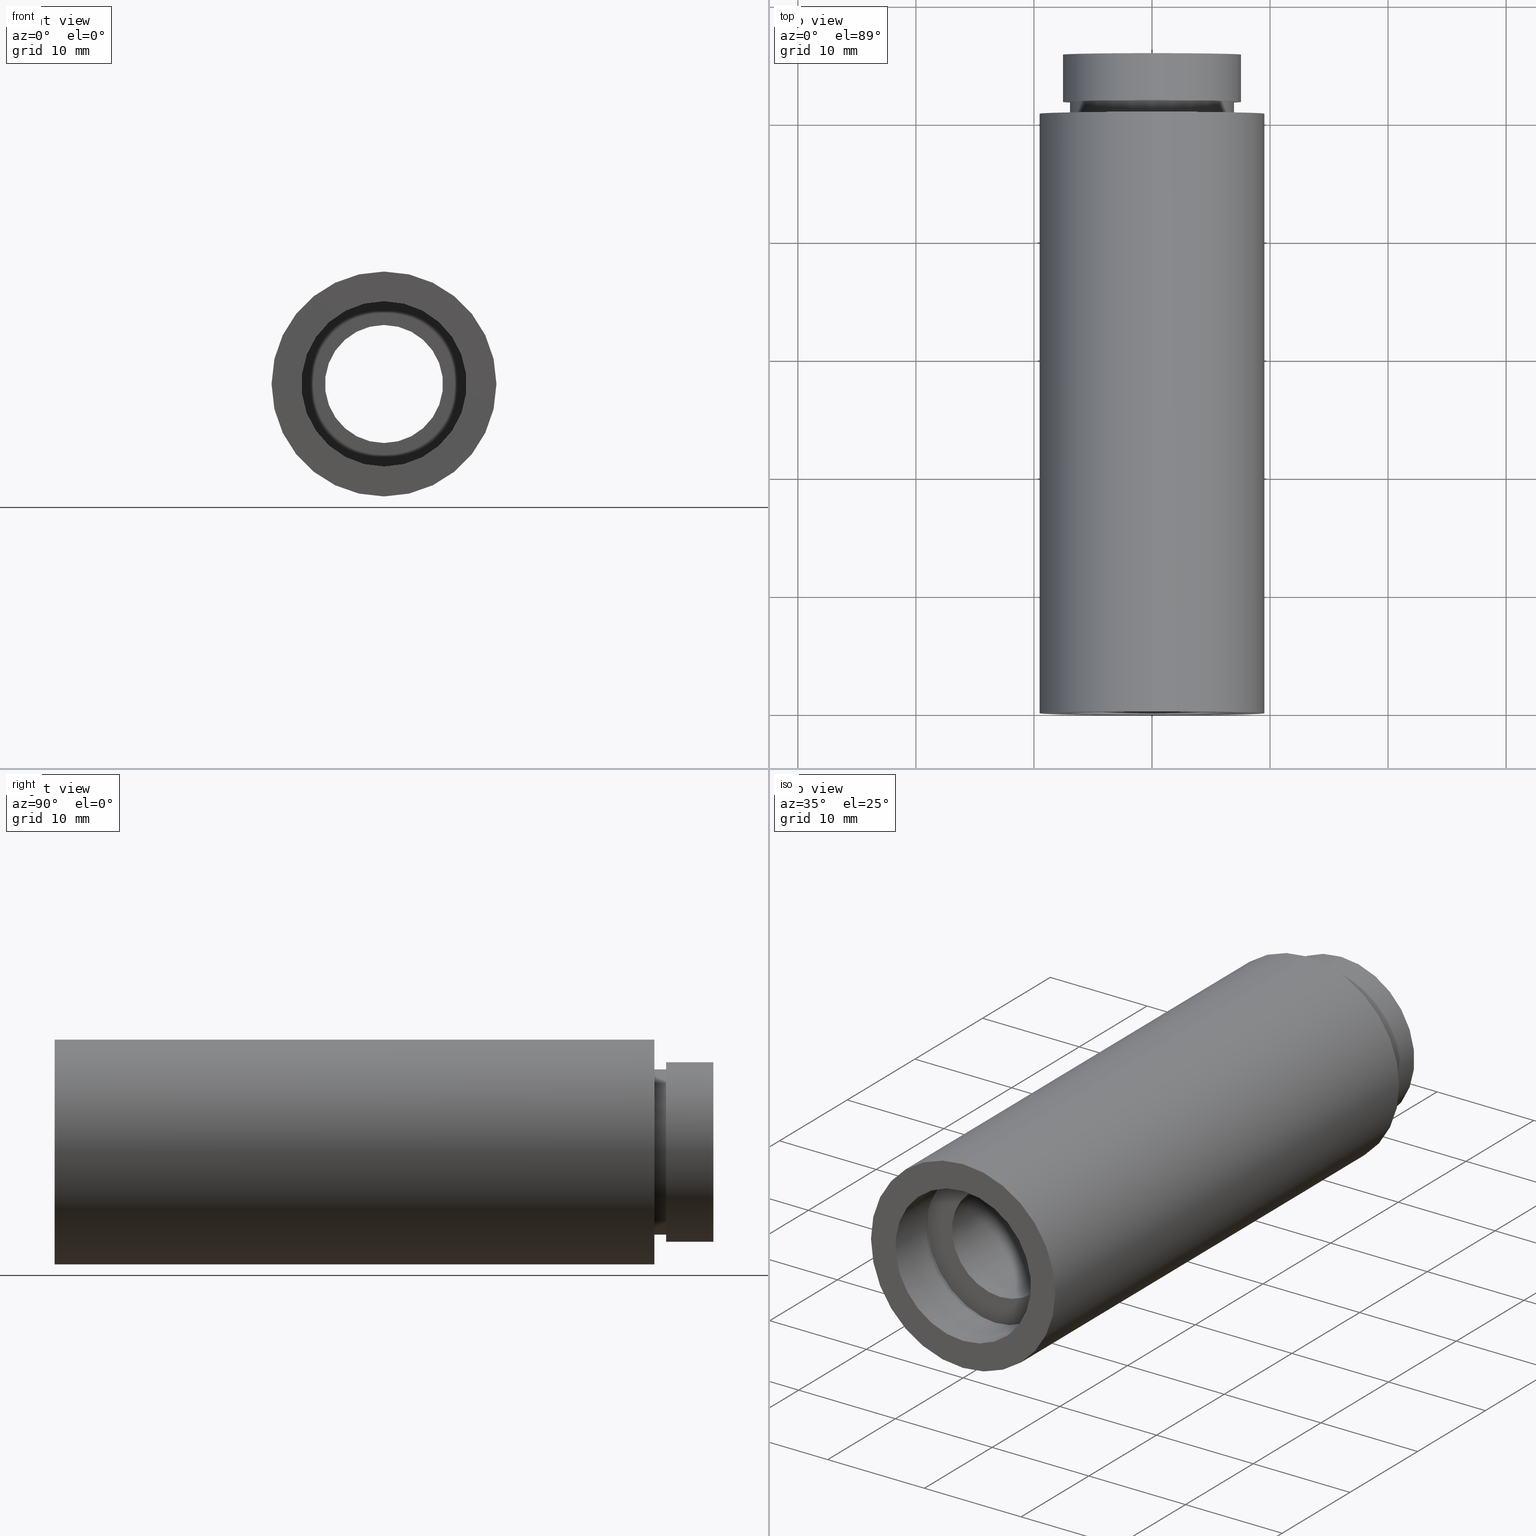
[diagram: canonical four-view strip — front | top / right | iso, engineering-drawing reading convention]
A machine part, canonical four-view strip (front | top / right | iso — engineering-drawing reading convention). The complete STEP part file that produces these views, byte-faithful:
ISO-10303-21;
HEADER;
FILE_DESCRIPTION (( 'STEP AP214' ),
    '1' );
FILE_NAME ('503089.STEP',
    '2019-09-11T06:12:07',
    ( '' ),
    ( '' ),
    'SwSTEP 2.0',
    'SolidWorks 2016',
    '' );
FILE_SCHEMA (( 'AUTOMOTIVE_DESIGN' ));
ENDSEC;

DATA;
#1 = DIRECTION ( 'NONE',  ( -0.0000000000000000000, 1.000000000000000000, -0.0000000000000000000 ) ) ;
#2 = EDGE_LOOP ( 'NONE', ( #42, #206, #378, #75 ) ) ;
#3 =( GEOMETRIC_REPRESENTATION_CONTEXT ( 3 ) GLOBAL_UNCERTAINTY_ASSIGNED_CONTEXT ( ( #586 ) ) GLOBAL_UNIT_ASSIGNED_CONTEXT ( ( #127, #316, #174 ) ) REPRESENTATION_CONTEXT ( 'NONE', 'WORKASPACE' ) );
#4 = ORIENTED_EDGE ( 'NONE', *, *, #388, .F. ) ;
#5 = DIRECTION ( 'NONE',  ( -0.0000000000000000000, 1.000000000000000000, -0.0000000000000000000 ) ) ;
#6 = DIRECTION ( 'NONE',  ( -0.0000000000000000000, 1.000000000000000000, -0.0000000000000000000 ) ) ;
#7 = DIRECTION ( 'NONE',  ( 0.0000000000000000000, 0.0000000000000000000, 1.000000000000000000 ) ) ;
#8 = LINE ( 'NONE', #203, #539 ) ;
#9 = CARTESIAN_POINT ( 'NONE',  ( 7.000000000000020400, 4.499999999999983100, 0.0000000000000000000 ) ) ;
#10 = CARTESIAN_POINT ( 'NONE',  ( 7.000000000000010700, 51.79999999999998300, 0.0000000000000000000 ) ) ;
#11 = DIRECTION ( 'NONE',  ( 0.0000000000000000000, -0.0000000000000000000, -1.000000000000000000 ) ) ;
#12 = STYLED_ITEM ( 'NONE', ( #382 ), #459 ) ;
#13 = DIRECTION ( 'NONE',  ( 0.0000000000000000000, 0.0000000000000000000, 1.000000000000000000 ) ) ;
#14 = DIRECTION ( 'NONE',  ( 0.0000000000000000000, 0.0000000000000000000, 1.000000000000000000 ) ) ;
#15 = EDGE_LOOP ( 'NONE', ( #341, #311, #371, #106 ) ) ;
#16 = VERTEX_POINT ( 'NONE', #70 ) ;
#17 = CARTESIAN_POINT ( 'NONE',  ( 0.0000000000000000000, 50.79999999999998300, 7.000000000000010700 ) ) ;
#18 = PRESENTATION_LAYER_ASSIGNMENT (  '', '', ( #596 ) ) ;
#19 = CARTESIAN_POINT ( 'NONE',  ( 7.600000000000010300, 55.79999999999997600, 0.0000000000000000000 ) ) ;
#20 = VECTOR ( 'NONE', #279, 1000.000000000000000 ) ;
#21 = FACE_OUTER_BOUND ( 'NONE', #115, .T. ) ;
#22 = DIRECTION ( 'NONE',  ( -0.0000000000000000000, 1.000000000000000000, -0.0000000000000000000 ) ) ;
#23 = AXIS2_PLACEMENT_3D ( 'NONE', #230, #274, #620 ) ;
#24 = CARTESIAN_POINT ( 'NONE',  ( 8.572527594031495900E-016, -2.775557561562891400E-014, -7.000000000000019500 ) ) ;
#25 = ORIENTED_EDGE ( 'NONE', *, *, #523, .T. ) ;
#26 = PRODUCT_DEFINITION_FORMATION_WITH_SPECIFIED_SOURCE ( '�κ�', '', #146, .NOT_KNOWN. ) ;
#27 = DIRECTION ( 'NONE',  ( -0.0000000000000000000, 1.000000000000000000, -0.0000000000000000000 ) ) ;
#28 = CARTESIAN_POINT ( 'NONE',  ( 0.0000000000000000000, 161.3761669434274500, 7.600000000000010300 ) ) ;
#29 =( NAMED_UNIT ( * ) SI_UNIT ( $, .STERADIAN. ) SOLID_ANGLE_UNIT ( ) );
#30 = ORIENTED_EDGE ( 'NONE', *, *, #58, .T. ) ;
#31 = CARTESIAN_POINT ( 'NONE',  ( 0.0000000000000000000, 161.3761669434274500, 0.0000000000000000000 ) ) ;
#32 = EDGE_CURVE ( 'NONE', #519, #318, #593, .T. ) ;
#33 = ORIENTED_EDGE ( 'NONE', *, *, #58, .F. ) ;
#34 = FACE_OUTER_BOUND ( 'NONE', #350, .T. ) ;
#35 = STYLED_ITEM ( 'NONE', ( #485 ), #294 ) ;
#36 = EDGE_LOOP ( 'NONE', ( #48, #394, #427, #589 ) ) ;
#37 = UNCERTAINTY_MEASURE_WITH_UNIT (LENGTH_MEASURE( 1.000000000000000100E-005 ), #517, 'distance_accuracy_value', 'NONE');
#38 = DIRECTION ( 'NONE',  ( -0.0000000000000000000, 1.000000000000000000, -0.0000000000000000000 ) ) ;
#39 = FACE_OUTER_BOUND ( 'NONE', #520, .T. ) ;
#40 = AXIS2_PLACEMENT_3D ( 'NONE', #31, #486, #121 ) ;
#41 = VERTEX_POINT ( 'NONE', #301 ) ;
#42 = ORIENTED_EDGE ( 'NONE', *, *, #557, .T. ) ;
#43 = FACE_OUTER_BOUND ( 'NONE', #537, .T. ) ;
#44 = SURFACE_STYLE_FILL_AREA ( #333 ) ;
#45 = CARTESIAN_POINT ( 'NONE',  ( 0.0000000000000000000, 51.79999999999998300, 0.0000000000000000000 ) ) ;
#46 = EDGE_CURVE ( 'NONE', #130, #438, #325, .T. ) ;
#47 = CARTESIAN_POINT ( 'NONE',  ( 9.307315673519907200E-016, 4.499999999999976000, -7.600000000000019200 ) ) ;
#48 = ORIENTED_EDGE ( 'NONE', *, *, #547, .T. ) ;
#49 = DIRECTION ( 'NONE',  ( -0.0000000000000000000, 1.000000000000000000, -0.0000000000000000000 ) ) ;
#50 = CARTESIAN_POINT ( 'NONE',  ( 0.0000000000000000000, 55.79999999999997600, 0.0000000000000000000 ) ) ;
#51 = DIRECTION ( 'NONE',  ( 0.0000000000000000000, 0.0000000000000000000, 1.000000000000000000 ) ) ;
#52 = CIRCLE ( 'NONE', #545, 7.000000000000019500 ) ;
#53 = CARTESIAN_POINT ( 'NONE',  ( 0.0000000000000000000, 55.79999999999997600, 0.0000000000000000000 ) ) ;
#54 = DIRECTION ( 'NONE',  ( 0.0000000000000000000, 0.0000000000000000000, 1.000000000000000000 ) ) ;
#55 = ORIENTED_EDGE ( 'NONE', *, *, #449, .F. ) ;
#56 = AXIS2_PLACEMENT_3D ( 'NONE', #366, #22, #60 ) ;
#57 = CLOSED_SHELL ( 'NONE', ( #540, #342, #294, #348, #526, #204, #248, #481, #114, #61, #165, #345, #299, #478, #471, #65, #347, #253 ) ) ;
#58 = EDGE_CURVE ( 'NONE', #349, #542, #600, .T. ) ;
#59 = DIRECTION ( 'NONE',  ( -0.0000000000000000000, 1.000000000000000000, -0.0000000000000000000 ) ) ;
#60 = DIRECTION ( 'NONE',  ( 0.0000000000000000000, 0.0000000000000000000, 1.000000000000000000 ) ) ;
#61 = ADVANCED_FACE ( 'NONE', ( #262 ), #531, .T. ) ;
#62 = DIRECTION ( 'NONE',  ( 0.0000000000000000000, -0.0000000000000000000, -1.000000000000000000 ) ) ;
#63 = STYLED_ITEM ( 'NONE', ( #190 ), #348 ) ;
#64 = VERTEX_POINT ( 'NONE', #548 ) ;
#65 = ADVANCED_FACE ( 'NONE', ( #492 ), #99, .F. ) ;
#66 = DIRECTION ( 'NONE',  ( 0.0000000000000000000, 0.0000000000000000000, 1.000000000000000000 ) ) ;
#67 = CYLINDRICAL_SURFACE ( 'NONE', #507, 9.525000000000019900 ) ;
#68 = VECTOR ( 'NONE', #392, 1000.000000000000000 ) ;
#69 = COLOUR_RGB ( '',1.000000000000000000, 1.000000000000000000, 1.000000000000000000 ) ;
#70 = CARTESIAN_POINT ( 'NONE',  ( 8.572527594031485000E-016, 50.79999999999998300, -7.000000000000010700 ) ) ;
#71 = VERTEX_POINT ( 'NONE', #353 ) ;
#72 = CARTESIAN_POINT ( 'NONE',  ( 0.0000000000000000000, 51.79999999999998300, 7.600000000000010300 ) ) ;
#73 = PRESENTATION_STYLE_ASSIGNMENT (( #387 ) ) ;
#74 = EDGE_CURVE ( 'NONE', #79, #356, #209, .T. ) ;
#75 = ORIENTED_EDGE ( 'NONE', *, *, #172, .F. ) ;
#76 = AXIS2_PLACEMENT_3D ( 'NONE', #425, #295, #293 ) ;
#77 = CIRCLE ( 'NONE', #450, 7.600000000000010300 ) ;
#78 = CARTESIAN_POINT ( 'NONE',  ( 0.0000000000000000000, 0.0000000000000000000, 0.0000000000000000000 ) ) ;
#79 = VERTEX_POINT ( 'NONE', #171 ) ;
#80 = VERTEX_POINT ( 'NONE', #218 ) ;
#81 = DIRECTION ( 'NONE',  ( 0.0000000000000000000, -1.000000000000000000, 0.0000000000000000000 ) ) ;
#82 = AXIS2_PLACEMENT_3D ( 'NONE', #249, #201, #157 ) ;
#83 = FACE_BOUND ( 'NONE', #195, .T. ) ;
#84 = CARTESIAN_POINT ( 'NONE',  ( 9.307315673519909100E-016, 5.499999999999976900, -7.600000000000020100 ) ) ;
#85 = FACE_OUTER_BOUND ( 'NONE', #95, .T. ) ;
#86 = CARTESIAN_POINT ( 'NONE',  ( 0.0000000000000000000, 161.3761669434274500, 0.0000000000000000000 ) ) ;
#87 =( NAMED_UNIT ( * ) SI_UNIT ( $, .STERADIAN. ) SOLID_ANGLE_UNIT ( ) );
#88 = CYLINDRICAL_SURFACE ( 'NONE', #527, 5.000000000000019500 ) ;
#89 = FILL_AREA_STYLE ('',( #186 ) ) ;
#90 = COLOUR_RGB ( '',1.000000000000000000, 1.000000000000000000, 1.000000000000000000 ) ;
#91 = LINE ( 'NONE', #256, #216 ) ;
#92 =( LENGTH_UNIT ( ) NAMED_UNIT ( * ) SI_UNIT ( .MILLI., .METRE. ) );
#93 = DIRECTION ( 'NONE',  ( 0.0000000000000000000, 0.0000000000000000000, 1.000000000000000000 ) ) ;
#94 = SURFACE_STYLE_USAGE ( .BOTH. , #96 ) ;
#95 = EDGE_LOOP ( 'NONE', ( #107, #357 ) ) ;
#96 = SURFACE_SIDE_STYLE ('',( #44 ) ) ;
#97 = SURFACE_STYLE_USAGE ( .BOTH. , #140 ) ;
#98 = DIRECTION ( 'NONE',  ( -0.0000000000000000000, 1.000000000000000000, -0.0000000000000000000 ) ) ;
#99 = CYLINDRICAL_SURFACE ( 'NONE', #40, 7.600000000000020100 ) ;
#100 = FACE_OUTER_BOUND ( 'NONE', #226, .T. ) ;
#101 = SURFACE_SIDE_STYLE ('',( #456 ) ) ;
#102 = DIRECTION ( 'NONE',  ( -0.0000000000000000000, 1.000000000000000000, -0.0000000000000000000 ) ) ;
#103 = STYLED_ITEM ( 'NONE', ( #281 ), #253 ) ;
#104 =( LENGTH_UNIT ( ) NAMED_UNIT ( * ) SI_UNIT ( .MILLI., .METRE. ) );
#105 = CARTESIAN_POINT ( 'NONE',  ( 0.0000000000000000000, 4.499999999999976000, 7.000000000000020400 ) ) ;
#106 = ORIENTED_EDGE ( 'NONE', *, *, #491, .T. ) ;
#107 = ORIENTED_EDGE ( 'NONE', *, *, #412, .F. ) ;
#108 = DIRECTION ( 'NONE',  ( -0.0000000000000000000, 1.000000000000000000, -0.0000000000000000000 ) ) ;
#109 = LINE ( 'NONE', #467, #170 ) ;
#110 = AXIS2_PLACEMENT_3D ( 'NONE', #452, #81, #413 ) ;
#111 =( LENGTH_UNIT ( ) NAMED_UNIT ( * ) SI_UNIT ( .MILLI., .METRE. ) );
#112 = COLOUR_RGB ( '',1.000000000000000000, 1.000000000000000000, 1.000000000000000000 ) ;
#113 = CARTESIAN_POINT ( 'NONE',  ( 0.0000000000000000000, 161.3761669434274500, 0.0000000000000000000 ) ) ;
#114 = ADVANCED_FACE ( 'NONE', ( #337, #384 ), #136, .F. ) ;
#115 = EDGE_LOOP ( 'NONE', ( #560, #469, #175, #277 ) ) ;
#116 = ORIENTED_EDGE ( 'NONE', *, *, #196, .F. ) ;
#117 = SHAPE_DEFINITION_REPRESENTATION ( #225, #459 ) ;
#118 = SURFACE_STYLE_FILL_AREA ( #468 ) ;
#119 = AXIS2_PLACEMENT_3D ( 'NONE', #461, #1, #464 ) ;
#120 = ORIENTED_EDGE ( 'NONE', *, *, #160, .F. ) ;
#121 = DIRECTION ( 'NONE',  ( 0.0000000000000000000, 0.0000000000000000000, 1.000000000000000000 ) ) ;
#122 = FACE_OUTER_BOUND ( 'NONE', #2, .T. ) ;
#123 = VECTOR ( 'NONE', #513, 1000.000000000000000 ) ;
#124 = AXIS2_PLACEMENT_3D ( 'NONE', #458, #411, #236 ) ;
#125 = CARTESIAN_POINT ( 'NONE',  ( 8.572527594031496900E-016, 161.3761669434274500, -7.000000000000020400 ) ) ;
#126 = FACE_OUTER_BOUND ( 'NONE', #260, .T. ) ;
#127 =( LENGTH_UNIT ( ) NAMED_UNIT ( * ) SI_UNIT ( .MILLI., .METRE. ) );
#128 = ORIENTED_EDGE ( 'NONE', *, *, #376, .T. ) ;
#129 = FILL_AREA_STYLE_COLOUR ( '', #148 ) ;
#130 = VERTEX_POINT ( 'NONE', #319 ) ;
#131 = VECTOR ( 'NONE', #108, 1000.000000000000000 ) ;
#132 = AXIS2_PLACEMENT_3D ( 'NONE', #534, #27, #439 ) ;
#133 = PRODUCT_RELATED_PRODUCT_CATEGORY ( 'part', '', ( #146 ) ) ;
#134 = EDGE_LOOP ( 'NONE', ( #389, #398 ) ) ;
#135 = LINE ( 'NONE', #512, #20 ) ;
#136 = PLANE ( 'NONE',  #110 ) ;
#137 = CIRCLE ( 'NONE', #440, 7.600000000000020100 ) ;
#138 = CARTESIAN_POINT ( 'NONE',  ( 0.0000000000000000000, 55.79999999999997600, 0.0000000000000000000 ) ) ;
#139 = EDGE_CURVE ( 'NONE', #608, #349, #447, .T. ) ;
#140 = SURFACE_SIDE_STYLE ('',( #176 ) ) ;
#141 = AXIS2_PLACEMENT_3D ( 'NONE', #472, #385, #431 ) ;
#142 = ORIENTED_EDGE ( 'NONE', *, *, #491, .F. ) ;
#143 = UNCERTAINTY_MEASURE_WITH_UNIT (LENGTH_MEASURE( 1.000000000000000100E-005 ), #92, 'distance_accuracy_value', 'NONE');
#144 = AXIS2_PLACEMENT_3D ( 'NONE', #409, #338, #244 ) ;
#145 = DIRECTION ( 'NONE',  ( 0.0000000000000000000, 0.0000000000000000000, 1.000000000000000000 ) ) ;
#146 = PRODUCT ( '503089', '503089', '', ( #229 ) ) ;
#147 = FACE_OUTER_BOUND ( 'NONE', #264, .T. ) ;
#148 = COLOUR_RGB ( '',1.000000000000000000, 1.000000000000000000, 1.000000000000000000 ) ;
#149 = DIRECTION ( 'NONE',  ( -0.0000000000000000000, 1.000000000000000000, -0.0000000000000000000 ) ) ;
#150 = VECTOR ( 'NONE', #98, 1000.000000000000000 ) ;
#151 = CARTESIAN_POINT ( 'NONE',  ( 0.0000000000000000000, 51.79999999999998300, 0.0000000000000000000 ) ) ;
#152 = CARTESIAN_POINT ( 'NONE',  ( 0.0000000000000000000, -2.775557561562891400E-014, 0.0000000000000000000 ) ) ;
#153 = VERTEX_POINT ( 'NONE', #84 ) ;
#154 = FILL_AREA_STYLE_COLOUR ( '', #585 ) ;
#155 = VECTOR ( 'NONE', #576, 1000.000000000000000 ) ;
#156 = PLANE ( 'NONE',  #158 ) ;
#157 = DIRECTION ( 'NONE',  ( 0.0000000000000000000, 0.0000000000000000000, 1.000000000000000000 ) ) ;
#158 = AXIS2_PLACEMENT_3D ( 'NONE', #19, #575, #11 ) ;
#159 = ORIENTED_EDGE ( 'NONE', *, *, #514, .T. ) ;
#160 = EDGE_CURVE ( 'NONE', #318, #519, #313, .T. ) ;
#161 =( NAMED_UNIT ( * ) PLANE_ANGLE_UNIT ( ) SI_UNIT ( $, .RADIAN. ) );
#162 = SURFACE_STYLE_USAGE ( .BOTH. , #307 ) ;
#163 = UNCERTAINTY_MEASURE_WITH_UNIT (LENGTH_MEASURE( 1.000000000000000100E-005 ), #104, 'distance_accuracy_value', 'NONE');
#164 = AXIS2_PLACEMENT_3D ( 'NONE', #45, #561, #324 ) ;
#165 = ADVANCED_FACE ( 'NONE', ( #215, #83 ), #500, .F. ) ;
#166 = ORIENTED_EDGE ( 'NONE', *, *, #217, .T. ) ;
#167 = DIRECTION ( 'NONE',  ( 0.0000000000000000000, 0.0000000000000000000, 1.000000000000000000 ) ) ;
#168 = ORIENTED_EDGE ( 'NONE', *, *, #574, .F. ) ;
#169 = AXIS2_PLACEMENT_3D ( 'NONE', #202, #290, #379 ) ;
#170 = VECTOR ( 'NONE', #479, 1000.000000000000000 ) ;
#171 = CARTESIAN_POINT ( 'NONE',  ( 9.307315673519897300E-016, 51.79999999999998300, -7.600000000000010300 ) ) ;
#172 = EDGE_CURVE ( 'NONE', #80, #255, #135, .T. ) ;
#173 = UNCERTAINTY_MEASURE_WITH_UNIT (LENGTH_MEASURE( 1.000000000000000100E-005 ), #433, 'distance_accuracy_value', 'NONE');
#174 =( NAMED_UNIT ( * ) SI_UNIT ( $, .STERADIAN. ) SOLID_ANGLE_UNIT ( ) );
#175 = ORIENTED_EDGE ( 'NONE', *, *, #429, .T. ) ;
#176 = SURFACE_STYLE_FILL_AREA ( #89 ) ;
#177 = FILL_AREA_STYLE ('',( #129 ) ) ;
#178 = ORIENTED_EDGE ( 'NONE', *, *, #590, .T. ) ;
#179 = FACE_BOUND ( 'NONE', #238, .T. ) ;
#180 = FILL_AREA_STYLE ('',( #237 ) ) ;
#181 = EDGE_CURVE ( 'NONE', #470, #495, #396, .T. ) ;
#182 = DIRECTION ( 'NONE',  ( -0.0000000000000000000, 1.000000000000000000, -0.0000000000000000000 ) ) ;
#183 = DIRECTION ( 'NONE',  ( -0.0000000000000000000, 1.000000000000000000, 0.0000000000000000000 ) ) ;
#184 = PRESENTATION_LAYER_ASSIGNMENT (  '', '', ( #359 ) ) ;
#185 = ORIENTED_EDGE ( 'NONE', *, *, #449, .T. ) ;
#186 = FILL_AREA_STYLE_COLOUR ( '', #417 ) ;
#187 = MANIFOLD_SOLID_BREP ( '��ת1', #57 ) ;
#188 = DIRECTION ( 'NONE',  ( -0.0000000000000000000, 1.000000000000000000, -0.0000000000000000000 ) ) ;
#189 = DIRECTION ( 'NONE',  ( 0.0000000000000000000, 0.0000000000000000000, 1.000000000000000000 ) ) ;
#190 = PRESENTATION_STYLE_ASSIGNMENT (( #162 ) ) ;
#191 = DIRECTION ( 'NONE',  ( 0.0000000000000000000, 0.0000000000000000000, 1.000000000000000000 ) ) ;
#192 = FILL_AREA_STYLE_COLOUR ( '', #90 ) ;
#193 = CARTESIAN_POINT ( 'NONE',  ( 1.166476076187856400E-015, -2.775557561562891400E-014, -9.525000000000019900 ) ) ;
#194 = PLANE ( 'NONE',  #473 ) ;
#195 = EDGE_LOOP ( 'NONE', ( #550, #436 ) ) ;
#196 = EDGE_CURVE ( 'NONE', #356, #79, #77, .T. ) ;
#197 = EDGE_LOOP ( 'NONE', ( #142, #33 ) ) ;
#198 = CARTESIAN_POINT ( 'NONE',  ( 1.166476076187856400E-015, 161.3761669434274500, -9.525000000000019900 ) ) ;
#199 = COLOUR_RGB ( '',1.000000000000000000, 1.000000000000000000, 1.000000000000000000 ) ;
#200 =( NAMED_UNIT ( * ) SI_UNIT ( $, .STERADIAN. ) SOLID_ANGLE_UNIT ( ) );
#201 = DIRECTION ( 'NONE',  ( -0.0000000000000000000, 1.000000000000000000, -0.0000000000000000000 ) ) ;
#202 = CARTESIAN_POINT ( 'NONE',  ( 0.0000000000000000000, 161.3761669434274500, 0.0000000000000000000 ) ) ;
#203 = CARTESIAN_POINT ( 'NONE',  ( 9.307315673519897300E-016, 161.3761669434274500, -7.600000000000010300 ) ) ;
#204 = ADVANCED_FACE ( 'NONE', ( #122 ), #67, .T. ) ;
#205 = SURFACE_STYLE_USAGE ( .BOTH. , #580 ) ;
#206 = ORIENTED_EDGE ( 'NONE', *, *, #315, .T. ) ;
#207 = AXIS2_PLACEMENT_3D ( 'NONE', #53, #516, #373 ) ;
#208 = DIRECTION ( 'NONE',  ( 0.0000000000000000000, 0.0000000000000000000, 1.000000000000000000 ) ) ;
#209 = CIRCLE ( 'NONE', #164, 7.600000000000010300 ) ;
#210 = AXIS2_PLACEMENT_3D ( 'NONE', #113, #245, #54 ) ;
#211 = AXIS2_PLACEMENT_3D ( 'NONE', #613, #188, #191 ) ;
#212 = CARTESIAN_POINT ( 'NONE',  ( 0.0000000000000000000, 161.3761669434274500, 5.000000000000019500 ) ) ;
#213 = ORIENTED_EDGE ( 'NONE', *, *, #361, .T. ) ;
#214 = DIRECTION ( 'NONE',  ( -0.0000000000000000000, 1.000000000000000000, -0.0000000000000000000 ) ) ;
#215 = FACE_OUTER_BOUND ( 'NONE', #362, .T. ) ;
#216 = VECTOR ( 'NONE', #214, 1000.000000000000000 ) ;
#217 = EDGE_CURVE ( 'NONE', #297, #317, #343, .T. ) ;
#218 = CARTESIAN_POINT ( 'NONE',  ( 0.0000000000000000000, -2.775557561562891400E-014, 9.525000000000019900 ) ) ;
#219 = ORIENTED_EDGE ( 'NONE', *, *, #611, .T. ) ;
#220 = PRESENTATION_STYLE_ASSIGNMENT (( #94 ) ) ;
#221 = DIRECTION ( 'NONE',  ( 0.0000000000000000000, 0.0000000000000000000, 1.000000000000000000 ) ) ;
#222 = ORIENTED_EDGE ( 'NONE', *, *, #514, .F. ) ;
#223 = ORIENTED_EDGE ( 'NONE', *, *, #582, .T. ) ;
#224 = AXIS2_PLACEMENT_3D ( 'NONE', #283, #49, #460 ) ;
#225 = PRODUCT_DEFINITION_SHAPE ( 'NONE', 'NONE',  #399 ) ;
#226 = EDGE_LOOP ( 'NONE', ( #579, #159, #227, #346 ) ) ;
#227 = ORIENTED_EDGE ( 'NONE', *, *, #419, .T. ) ;
#228 = SURFACE_SIDE_STYLE ('',( #603 ) ) ;
#229 = PRODUCT_CONTEXT ( 'NONE', #265, 'mechanical' ) ;
#230 = CARTESIAN_POINT ( 'NONE',  ( 0.0000000000000000000, 161.3761669434274500, 0.0000000000000000000 ) ) ;
#231 = LINE ( 'NONE', #28, #68 ) ;
#232 = AXIS2_PLACEMENT_3D ( 'NONE', #275, #182, #93 ) ;
#233 = DIRECTION ( 'NONE',  ( 1.000000000000000000, 0.0000000000000000000, 0.0000000000000000000 ) ) ;
#234 = CARTESIAN_POINT ( 'NONE',  ( 7.600000000000020100, 5.499999999999984000, 0.0000000000000000000 ) ) ;
#235 = AXIS2_PLACEMENT_3D ( 'NONE', #567, #622, #463 ) ;
#236 = DIRECTION ( 'NONE',  ( 0.0000000000000000000, 0.0000000000000000000, 1.000000000000000000 ) ) ;
#237 = FILL_AREA_STYLE_COLOUR ( '', #69 ) ;
#238 = EDGE_LOOP ( 'NONE', ( #451, #219 ) ) ;
#239 = DIRECTION ( 'NONE',  ( 0.0000000000000000000, 0.0000000000000000000, 1.000000000000000000 ) ) ;
#240 = CARTESIAN_POINT ( 'NONE',  ( 9.307315673519897300E-016, 55.79999999999997600, -7.600000000000010300 ) ) ;
#241 = CYLINDRICAL_SURFACE ( 'NONE', #210, 7.000000000000020400 ) ;
#242 = CARTESIAN_POINT ( 'NONE',  ( 8.572527594031485000E-016, 161.3761669434274500, -7.000000000000010700 ) ) ;
#243 = AXIS2_PLACEMENT_3D ( 'NONE', #251, #428, #522 ) ;
#244 = DIRECTION ( 'NONE',  ( 0.0000000000000000000, 0.0000000000000000000, 1.000000000000000000 ) ) ;
#245 = DIRECTION ( 'NONE',  ( -0.0000000000000000000, 1.000000000000000000, -0.0000000000000000000 ) ) ;
#246 = ORIENTED_EDGE ( 'NONE', *, *, #74, .F. ) ;
#247 = EDGE_CURVE ( 'NONE', #16, #528, #543, .T. ) ;
#248 = ADVANCED_FACE ( 'NONE', ( #563, #618 ), #368, .F. ) ;
#249 = CARTESIAN_POINT ( 'NONE',  ( 0.0000000000000000000, 4.499999999999976000, 0.0000000000000000000 ) ) ;
#250 = PRESENTATION_STYLE_ASSIGNMENT (( #205 ) ) ;
#251 = CARTESIAN_POINT ( 'NONE',  ( 0.0000000000000000000, 161.3761669434274500, 0.0000000000000000000 ) ) ;
#252 = PRESENTATION_LAYER_ASSIGNMENT (  '', '', ( #35 ) ) ;
#253 = ADVANCED_FACE ( 'NONE', ( #476 ), #457, .F. ) ;
#254 = ORIENTED_EDGE ( 'NONE', *, *, #181, .T. ) ;
#255 = VERTEX_POINT ( 'NONE', #328 ) ;
#256 = CARTESIAN_POINT ( 'NONE',  ( 0.0000000000000000000, 161.3761669434274500, 7.000000000000010700 ) ) ;
#257 = FACE_OUTER_BOUND ( 'NONE', #36, .T. ) ;
#258 = DIRECTION ( 'NONE',  ( -0.0000000000000000000, 1.000000000000000000, -0.0000000000000000000 ) ) ;
#259 = DIRECTION ( 'NONE',  ( 0.0000000000000000000, 0.0000000000000000000, 1.000000000000000000 ) ) ;
#260 = EDGE_LOOP ( 'NONE', ( #309, #178, #570, #4 ) ) ;
#261 = ORIENTED_EDGE ( 'NONE', *, *, #490, .F. ) ;
#262 = FACE_OUTER_BOUND ( 'NONE', #612, .T. ) ;
#263 = EDGE_CURVE ( 'NONE', #495, #470, #498, .T. ) ;
#264 = EDGE_LOOP ( 'NONE', ( #166, #185 ) ) ;
#265 = APPLICATION_CONTEXT ( 'automotive_design' ) ;
#266 = CIRCLE ( 'NONE', #235, 9.525000000000019900 ) ;
#267 = SURFACE_SIDE_STYLE ('',( #609 ) ) ;
#268 = DIRECTION ( 'NONE',  ( -0.0000000000000000000, 1.000000000000000000, -0.0000000000000000000 ) ) ;
#269 = EDGE_LOOP ( 'NONE', ( #331, #482, #304, #261 ) ) ;
#270 = ORIENTED_EDGE ( 'NONE', *, *, #621, .F. ) ;
#271 = CIRCLE ( 'NONE', #76, 7.000000000000010700 ) ;
#272 = AXIS2_PLACEMENT_3D ( 'NONE', #483, #258, #167 ) ;
#273 = UNCERTAINTY_MEASURE_WITH_UNIT (LENGTH_MEASURE( 1.000000000000000100E-005 ), #569, 'distance_accuracy_value', 'NONE');
#274 = DIRECTION ( 'NONE',  ( -0.0000000000000000000, 1.000000000000000000, -0.0000000000000000000 ) ) ;
#275 = CARTESIAN_POINT ( 'NONE',  ( 0.0000000000000000000, 50.79999999999998300, 0.0000000000000000000 ) ) ;
#276 =( NAMED_UNIT ( * ) PLANE_ANGLE_UNIT ( ) SI_UNIT ( $, .RADIAN. ) );
#277 = ORIENTED_EDGE ( 'NONE', *, *, #46, .F. ) ;
#278 =( LENGTH_UNIT ( ) NAMED_UNIT ( * ) SI_UNIT ( .MILLI., .METRE. ) );
#279 = DIRECTION ( 'NONE',  ( -0.0000000000000000000, 1.000000000000000000, -0.0000000000000000000 ) ) ;
#280 = CARTESIAN_POINT ( 'NONE',  ( 0.0000000000000000000, 161.3761669434274500, 0.0000000000000000000 ) ) ;
#281 = PRESENTATION_STYLE_ASSIGNMENT (( #509 ) ) ;
#282 =( NAMED_UNIT ( * ) PLANE_ANGLE_UNIT ( ) SI_UNIT ( $, .RADIAN. ) );
#283 = CARTESIAN_POINT ( 'NONE',  ( 0.0000000000000000000, 51.79999999999998300, 0.0000000000000000000 ) ) ;
#284 = MECHANICAL_DESIGN_GEOMETRIC_PRESENTATION_REPRESENTATION (  '', ( #397 ), #296 ) ;
#285 = FILL_AREA_STYLE ('',( #624 ) ) ;
#286 = ORIENTED_EDGE ( 'NONE', *, *, #590, .F. ) ;
#287 = UNCERTAINTY_MEASURE_WITH_UNIT (LENGTH_MEASURE( 1.000000000000000100E-005 ), #555, 'distance_accuracy_value', 'NONE');
#288 = EDGE_LOOP ( 'NONE', ( #405, #598 ) ) ;
#289 = DIRECTION ( 'NONE',  ( -0.0000000000000000000, 1.000000000000000000, -0.0000000000000000000 ) ) ;
#290 = DIRECTION ( 'NONE',  ( -0.0000000000000000000, 1.000000000000000000, -0.0000000000000000000 ) ) ;
#291 = CIRCLE ( 'NONE', #554, 9.525000000000019900 ) ;
#292 = FILL_AREA_STYLE ('',( #587 ) ) ;
#293 = DIRECTION ( 'NONE',  ( 0.0000000000000000000, 0.0000000000000000000, 1.000000000000000000 ) ) ;
#294 = ADVANCED_FACE ( 'NONE', ( #21 ), #344, .F. ) ;
#295 = DIRECTION ( 'NONE',  ( -0.0000000000000000000, 1.000000000000000000, -0.0000000000000000000 ) ) ;
#296 =( GEOMETRIC_REPRESENTATION_CONTEXT ( 3 ) GLOBAL_UNCERTAINTY_ASSIGNED_CONTEXT ( ( #143 ) ) GLOBAL_UNIT_ASSIGNED_CONTEXT ( ( #92, #565, #511 ) ) REPRESENTATION_CONTEXT ( 'NONE', 'WORKASPACE' ) );
#297 = VERTEX_POINT ( 'NONE', #515 ) ;
#298 =( NAMED_UNIT ( * ) SI_UNIT ( $, .STERADIAN. ) SOLID_ANGLE_UNIT ( ) );
#299 = ADVANCED_FACE ( 'NONE', ( #372, #147 ), #156, .F. ) ;
#300 = PRESENTATION_STYLE_ASSIGNMENT (( #97 ) ) ;
#301 = CARTESIAN_POINT ( 'NONE',  ( 0.0000000000000000000, 5.499999999999976900, 7.600000000000020100 ) ) ;
#302 = DIRECTION ( 'NONE',  ( -0.0000000000000000000, 1.000000000000000000, -0.0000000000000000000 ) ) ;
#303 = DIRECTION ( 'NONE',  ( 0.0000000000000000000, 0.0000000000000000000, 1.000000000000000000 ) ) ;
#304 = ORIENTED_EDGE ( 'NONE', *, *, #172, .T. ) ;
#305 = AXIS2_PLACEMENT_3D ( 'NONE', #336, #149, #14 ) ;
#306 = ORIENTED_EDGE ( 'NONE', *, *, #388, .T. ) ;
#307 = SURFACE_SIDE_STYLE ('',( #314 ) ) ;
#308 = AXIS2_PLACEMENT_3D ( 'NONE', #50, #568, #330 ) ;
#309 = ORIENTED_EDGE ( 'NONE', *, *, #196, .T. ) ;
#310 = AXIS2_PLACEMENT_3D ( 'NONE', #10, #369, #189 ) ;
#311 = ORIENTED_EDGE ( 'NONE', *, *, #444, .F. ) ;
#312 = MECHANICAL_DESIGN_GEOMETRIC_PRESENTATION_REPRESENTATION (  '', ( #103 ), #367 ) ;
#313 = CIRCLE ( 'NONE', #224, 7.000000000000010700 ) ;
#314 = SURFACE_STYLE_FILL_AREA ( #524 ) ;
#315 = EDGE_CURVE ( 'NONE', #432, #64, #532, .T. ) ;
#316 =( NAMED_UNIT ( * ) PLANE_ANGLE_UNIT ( ) SI_UNIT ( $, .RADIAN. ) );
#317 = VERTEX_POINT ( 'NONE', #240 ) ;
#318 = VERTEX_POINT ( 'NONE', #525 ) ;
#319 = CARTESIAN_POINT ( 'NONE',  ( 0.0000000000000000000, 5.499999999999976900, 5.000000000000019500 ) ) ;
#320 = CIRCLE ( 'NONE', #56, 9.525000000000019900 ) ;
#321 = APPLICATION_PROTOCOL_DEFINITION ( 'draft international standard', 'automotive_design', 1998, #558 ) ;
#322 = ORIENTED_EDGE ( 'NONE', *, *, #557, .F. ) ;
#323 = EDGE_CURVE ( 'NONE', #130, #415, #493, .T. ) ;
#324 = DIRECTION ( 'NONE',  ( 0.0000000000000000000, 0.0000000000000000000, 1.000000000000000000 ) ) ;
#325 = LINE ( 'NONE', #212, #400 ) ;
#326 = DIRECTION ( 'NONE',  ( 0.0000000000000000000, 0.0000000000000000000, 1.000000000000000000 ) ) ;
#327 = DIRECTION ( 'NONE',  ( 0.0000000000000000000, 0.0000000000000000000, 1.000000000000000000 ) ) ;
#328 = CARTESIAN_POINT ( 'NONE',  ( 0.0000000000000000000, 50.79999999999998300, 9.525000000000019900 ) ) ;
#329 = DIRECTION ( 'NONE',  ( 0.0000000000000000000, 0.0000000000000000000, 1.000000000000000000 ) ) ;
#330 = DIRECTION ( 'NONE',  ( 0.0000000000000000000, 0.0000000000000000000, 1.000000000000000000 ) ) ;
#331 = ORIENTED_EDGE ( 'NONE', *, *, #315, .F. ) ;
#332 = ORIENTED_EDGE ( 'NONE', *, *, #139, .T. ) ;
#333 = FILL_AREA_STYLE ('',( #192 ) ) ;
#334 = CARTESIAN_POINT ( 'NONE',  ( 0.0000000000000000000, 161.3761669434274500, 7.000000000000020400 ) ) ;
#335 = LINE ( 'NONE', #477, #155 ) ;
#336 = CARTESIAN_POINT ( 'NONE',  ( 0.0000000000000000000, 5.499999999999976900, 0.0000000000000000000 ) ) ;
#337 = FACE_BOUND ( 'NONE', #462, .T. ) ;
#338 = DIRECTION ( 'NONE',  ( -0.0000000000000000000, 1.000000000000000000, -0.0000000000000000000 ) ) ;
#339 = CARTESIAN_POINT ( 'NONE',  ( 0.0000000000000000000, -2.775557561562891400E-014, 0.0000000000000000000 ) ) ;
#340 = CARTESIAN_POINT ( 'NONE',  ( 0.0000000000000000000, 161.3761669434274500, 0.0000000000000000000 ) ) ;
#341 = ORIENTED_EDGE ( 'NONE', *, *, #139, .F. ) ;
#342 = ADVANCED_FACE ( 'NONE', ( #100 ), #365, .F. ) ;
#343 = CIRCLE ( 'NONE', #207, 7.600000000000010300 ) ;
#344 = CYLINDRICAL_SURFACE ( 'NONE', #530, 5.000000000000019500 ) ;
#345 = ADVANCED_FACE ( 'NONE', ( #39 ), #435, .T. ) ;
#346 = ORIENTED_EDGE ( 'NONE', *, *, #523, .F. ) ;
#347 = ADVANCED_FACE ( 'NONE', ( #619, #352 ), #194, .F. ) ;
#348 = ADVANCED_FACE ( 'NONE', ( #126 ), #553, .T. ) ;
#349 = VERTEX_POINT ( 'NONE', #583 ) ;
#350 = EDGE_LOOP ( 'NONE', ( #270, #404, #423, #213 ) ) ;
#351 = CIRCLE ( 'NONE', #308, 5.000000000000019500 ) ;
#352 = FACE_OUTER_BOUND ( 'NONE', #597, .T. ) ;
#353 = CARTESIAN_POINT ( 'NONE',  ( 0.0000000000000000000, -2.775557561562891400E-014, 7.000000000000019500 ) ) ;
#354 = PRESENTATION_LAYER_ASSIGNMENT (  '', '', ( #397 ) ) ;
#355 = CARTESIAN_POINT ( 'NONE',  ( 6.123233995736789000E-016, 161.3761669434274500, -5.000000000000019500 ) ) ;
#356 = VERTEX_POINT ( 'NONE', #72 ) ;
#357 = ORIENTED_EDGE ( 'NONE', *, *, #419, .F. ) ;
#358 = DIRECTION ( 'NONE',  ( -0.0000000000000000000, 1.000000000000000000, -0.0000000000000000000 ) ) ;
#359 = STYLED_ITEM ( 'NONE', ( #250 ), #345 ) ;
#360 = AXIS2_PLACEMENT_3D ( 'NONE', #234, #183, #327 ) ;
#361 = EDGE_CURVE ( 'NONE', #438, #572, #401, .T. ) ;
#362 = EDGE_LOOP ( 'NONE', ( #116, #246 ) ) ;
#363 = ORIENTED_EDGE ( 'NONE', *, *, #412, .T. ) ;
#364 = AXIS2_PLACEMENT_3D ( 'NONE', #571, #418, #326 ) ;
#365 = CYLINDRICAL_SURFACE ( 'NONE', #393, 7.600000000000020100 ) ;
#366 = CARTESIAN_POINT ( 'NONE',  ( 0.0000000000000000000, 50.79999999999998300, 0.0000000000000000000 ) ) ;
#367 =( GEOMETRIC_REPRESENTATION_CONTEXT ( 3 ) GLOBAL_UNCERTAINTY_ASSIGNED_CONTEXT ( ( #499 ) ) GLOBAL_UNIT_ASSIGNED_CONTEXT ( ( #278, #455, #504 ) ) REPRESENTATION_CONTEXT ( 'NONE', 'WORKASPACE' ) );
#368 = PLANE ( 'NONE',  #124 ) ;
#369 = DIRECTION ( 'NONE',  ( -0.0000000000000000000, 1.000000000000000000, 0.0000000000000000000 ) ) ;
#370 = CARTESIAN_POINT ( 'NONE',  ( 0.0000000000000000000, 4.499999999999976000, 7.600000000000019200 ) ) ;
#371 = ORIENTED_EDGE ( 'NONE', *, *, #442, .T. ) ;
#372 = FACE_BOUND ( 'NONE', #288, .T. ) ;
#373 = DIRECTION ( 'NONE',  ( 0.0000000000000000000, 0.0000000000000000000, 1.000000000000000000 ) ) ;
#374 = DIRECTION ( 'NONE',  ( -0.0000000000000000000, 1.000000000000000000, -0.0000000000000000000 ) ) ;
#375 = DIRECTION ( 'NONE',  ( -0.0000000000000000000, 1.000000000000000000, -0.0000000000000000000 ) ) ;
#376 = EDGE_CURVE ( 'NONE', #528, #519, #91, .T. ) ;
#377 = EDGE_LOOP ( 'NONE', ( #536, #223 ) ) ;
#378 = ORIENTED_EDGE ( 'NONE', *, *, #599, .F. ) ;
#379 = DIRECTION ( 'NONE',  ( 0.0000000000000000000, 0.0000000000000000000, 1.000000000000000000 ) ) ;
#380 = CARTESIAN_POINT ( 'NONE',  ( 6.123233995736789000E-016, 55.79999999999997600, -5.000000000000019500 ) ) ;
#381 =( GEOMETRIC_REPRESENTATION_CONTEXT ( 3 ) GLOBAL_UNCERTAINTY_ASSIGNED_CONTEXT ( ( #508 ) ) GLOBAL_UNIT_ASSIGNED_CONTEXT ( ( #111, #161, #29 ) ) REPRESENTATION_CONTEXT ( 'NONE', 'WORKASPACE' ) );
#382 = PRESENTATION_STYLE_ASSIGNMENT (( #546 ) ) ;
#383 = CARTESIAN_POINT ( 'NONE',  ( 0.0000000000000000000, 161.3761669434274500, 0.0000000000000000000 ) ) ;
#384 = FACE_OUTER_BOUND ( 'NONE', #134, .T. ) ;
#385 = DIRECTION ( 'NONE',  ( -0.0000000000000000000, 1.000000000000000000, -0.0000000000000000000 ) ) ;
#386 = SURFACE_STYLE_USAGE ( .BOTH. , #474 ) ;
#387 = SURFACE_STYLE_USAGE ( .BOTH. , #101 ) ;
#388 = EDGE_CURVE ( 'NONE', #356, #297, #231, .T. ) ;
#389 = ORIENTED_EDGE ( 'NONE', *, *, #599, .T. ) ;
#390 = LINE ( 'NONE', #242, #131 ) ;
#391 = DIRECTION ( 'NONE',  ( -0.0000000000000000000, 1.000000000000000000, -0.0000000000000000000 ) ) ;
#392 = DIRECTION ( 'NONE',  ( -0.0000000000000000000, 1.000000000000000000, -0.0000000000000000000 ) ) ;
#393 = AXIS2_PLACEMENT_3D ( 'NONE', #340, #59, #420 ) ;
#394 = ORIENTED_EDGE ( 'NONE', *, *, #574, .T. ) ;
#395 = ORIENTED_EDGE ( 'NONE', *, *, #442, .F. ) ;
#396 = CIRCLE ( 'NONE', #364, 7.600000000000019200 ) ;
#397 = STYLED_ITEM ( 'NONE', ( #220 ), #187 ) ;
#398 = ORIENTED_EDGE ( 'NONE', *, *, #490, .T. ) ;
#399 = PRODUCT_DEFINITION ( 'δ֪', '', #26, #407 ) ;
#400 = VECTOR ( 'NONE', #302, 1000.000000000000000 ) ;
#401 = CIRCLE ( 'NONE', #408, 5.000000000000019500 ) ;
#402 = APPLICATION_PROTOCOL_DEFINITION ( 'draft international standard', 'automotive_design', 1998, #265 ) ;
#403 = DIRECTION ( 'NONE',  ( 0.0000000000000000000, 0.0000000000000000000, 1.000000000000000000 ) ) ;
#404 = ORIENTED_EDGE ( 'NONE', *, *, #323, .F. ) ;
#405 = ORIENTED_EDGE ( 'NONE', *, *, #361, .F. ) ;
#406 = LINE ( 'NONE', #355, #505 ) ;
#407 = PRODUCT_DEFINITION_CONTEXT ( 'detailed design', #558, 'design' ) ;
#408 = AXIS2_PLACEMENT_3D ( 'NONE', #533, #591, #303 ) ;
#409 = CARTESIAN_POINT ( 'NONE',  ( 0.0000000000000000000, 4.499999999999976000, 0.0000000000000000000 ) ) ;
#410 = DIRECTION ( 'NONE',  ( -0.0000000000000000000, 1.000000000000000000, -0.0000000000000000000 ) ) ;
#411 = DIRECTION ( 'NONE',  ( -0.0000000000000000000, 1.000000000000000000, 0.0000000000000000000 ) ) ;
#412 = EDGE_CURVE ( 'NONE', #41, #153, #137, .T. ) ;
#413 = DIRECTION ( 'NONE',  ( 0.0000000000000000000, -0.0000000000000000000, -1.000000000000000000 ) ) ;
#414 = CARTESIAN_POINT ( 'NONE',  ( 0.0000000000000000000, 51.79999999999998300, 7.000000000000010700 ) ) ;
#415 = VERTEX_POINT ( 'NONE', #502 ) ;
#416 = CARTESIAN_POINT ( 'NONE',  ( 0.0000000000000000000, 161.3761669434274500, 0.0000000000000000000 ) ) ;
#417 = COLOUR_RGB ( '',1.000000000000000000, 1.000000000000000000, 1.000000000000000000 ) ;
#418 = DIRECTION ( 'NONE',  ( -0.0000000000000000000, 1.000000000000000000, -0.0000000000000000000 ) ) ;
#419 = EDGE_CURVE ( 'NONE', #153, #41, #584, .T. ) ;
#420 = DIRECTION ( 'NONE',  ( 0.0000000000000000000, 0.0000000000000000000, 1.000000000000000000 ) ) ;
#421 = DIRECTION ( 'NONE',  ( -0.0000000000000000000, 1.000000000000000000, -0.0000000000000000000 ) ) ;
#422 =( NAMED_UNIT ( * ) SI_UNIT ( $, .STERADIAN. ) SOLID_ANGLE_UNIT ( ) );
#423 = ORIENTED_EDGE ( 'NONE', *, *, #46, .T. ) ;
#424 = EDGE_LOOP ( 'NONE', ( #222, #614, #25, #363 ) ) ;
#425 = CARTESIAN_POINT ( 'NONE',  ( 0.0000000000000000000, 50.79999999999998300, 0.0000000000000000000 ) ) ;
#426 =( GEOMETRIC_REPRESENTATION_CONTEXT ( 3 ) GLOBAL_UNCERTAINTY_ASSIGNED_CONTEXT ( ( #273 ) ) GLOBAL_UNIT_ASSIGNED_CONTEXT ( ( #569, #282, #422 ) ) REPRESENTATION_CONTEXT ( 'NONE', 'WORKASPACE' ) );
#427 = ORIENTED_EDGE ( 'NONE', *, *, #32, .F. ) ;
#428 = DIRECTION ( 'NONE',  ( -0.0000000000000000000, 1.000000000000000000, -0.0000000000000000000 ) ) ;
#429 = EDGE_CURVE ( 'NONE', #572, #438, #351, .T. ) ;
#430 =( NAMED_UNIT ( * ) PLANE_ANGLE_UNIT ( ) SI_UNIT ( $, .RADIAN. ) );
#431 = DIRECTION ( 'NONE',  ( 0.0000000000000000000, 0.0000000000000000000, 1.000000000000000000 ) ) ;
#432 = VERTEX_POINT ( 'NONE', #193 ) ;
#433 =( LENGTH_UNIT ( ) NAMED_UNIT ( * ) SI_UNIT ( .MILLI., .METRE. ) );
#434 = VECTOR ( 'NONE', #268, 1000.000000000000000 ) ;
#435 = CYLINDRICAL_SURFACE ( 'NONE', #169, 7.600000000000010300 ) ;
#436 = ORIENTED_EDGE ( 'NONE', *, *, #160, .T. ) ;
#437 = STYLED_ITEM ( 'NONE', ( #300 ), #478 ) ;
#438 = VERTEX_POINT ( 'NONE', #573 ) ;
#439 = DIRECTION ( 'NONE',  ( 0.0000000000000000000, 0.0000000000000000000, 1.000000000000000000 ) ) ;
#440 = AXIS2_PLACEMENT_3D ( 'NONE', #506, #556, #145 ) ;
#441 = ORIENTED_EDGE ( 'NONE', *, *, #582, .F. ) ;
#442 = EDGE_CURVE ( 'NONE', #71, #542, #544, .T. ) ;
#443 = AXIS2_PLACEMENT_3D ( 'NONE', #518, #289, #13 ) ;
#444 = EDGE_CURVE ( 'NONE', #71, #608, #52, .T. ) ;
#445 = ORIENTED_EDGE ( 'NONE', *, *, #74, .T. ) ;
#446 = CIRCLE ( 'NONE', #443, 7.000000000000019500 ) ;
#447 = LINE ( 'NONE', #125, #434 ) ;
#448 = MECHANICAL_DESIGN_GEOMETRIC_PRESENTATION_REPRESENTATION (  '', ( #437 ), #610 ) ;
#449 = EDGE_CURVE ( 'NONE', #317, #297, #601, .T. ) ;
#450 = AXIS2_PLACEMENT_3D ( 'NONE', #151, #421, #329 ) ;
#451 = ORIENTED_EDGE ( 'NONE', *, *, #323, .T. ) ;
#452 = CARTESIAN_POINT ( 'NONE',  ( 9.525000000000019900, 50.79999999999998300, 0.0000000000000000000 ) ) ;
#453 = DIRECTION ( 'NONE',  ( 0.0000000000000000000, 0.0000000000000000000, 1.000000000000000000 ) ) ;
#454 = MECHANICAL_DESIGN_GEOMETRIC_PRESENTATION_REPRESENTATION (  '', ( #596 ), #602 ) ;
#455 =( NAMED_UNIT ( * ) PLANE_ANGLE_UNIT ( ) SI_UNIT ( $, .RADIAN. ) );
#456 = SURFACE_STYLE_FILL_AREA ( #292 ) ;
#457 = CYLINDRICAL_SURFACE ( 'NONE', #211, 7.000000000000020400 ) ;
#458 = CARTESIAN_POINT ( 'NONE',  ( 7.000000000000019500, -1.650046791174882700E-014, 0.0000000000000000000 ) ) ;
#459 = ADVANCED_BREP_SHAPE_REPRESENTATION ( '503089', ( #187, #551 ), #3 ) ;
#460 = DIRECTION ( 'NONE',  ( 0.0000000000000000000, 0.0000000000000000000, 1.000000000000000000 ) ) ;
#461 = CARTESIAN_POINT ( 'NONE',  ( 0.0000000000000000000, 5.499999999999976900, 0.0000000000000000000 ) ) ;
#462 = EDGE_LOOP ( 'NONE', ( #510, #503 ) ) ;
#463 = DIRECTION ( 'NONE',  ( 0.0000000000000000000, 0.0000000000000000000, 1.000000000000000000 ) ) ;
#464 = DIRECTION ( 'NONE',  ( 0.0000000000000000000, 0.0000000000000000000, 1.000000000000000000 ) ) ;
#465 = AXIS2_PLACEMENT_3D ( 'NONE', #138, #374, #239 ) ;
#466 = FILL_AREA_STYLE_COLOUR ( '', #564 ) ;
#467 = CARTESIAN_POINT ( 'NONE',  ( 9.307315673519909100E-016, 161.3761669434274500, -7.600000000000020100 ) ) ;
#468 = FILL_AREA_STYLE ('',( #154 ) ) ;
#469 = ORIENTED_EDGE ( 'NONE', *, *, #621, .T. ) ;
#470 = VERTEX_POINT ( 'NONE', #370 ) ;
#471 = ADVANCED_FACE ( 'NONE', ( #85, #179 ), #562, .F. ) ;
#472 = CARTESIAN_POINT ( 'NONE',  ( 0.0000000000000000000, -2.775557561562891400E-014, 0.0000000000000000000 ) ) ;
#473 = AXIS2_PLACEMENT_3D ( 'NONE', #9, #577, #62 ) ;
#474 = SURFACE_SIDE_STYLE ('',( #496 ) ) ;
#475 = CYLINDRICAL_SURFACE ( 'NONE', #23, 9.525000000000019900 ) ;
#476 = FACE_OUTER_BOUND ( 'NONE', #15, .T. ) ;
#477 = CARTESIAN_POINT ( 'NONE',  ( 0.0000000000000000000, 161.3761669434274500, 7.600000000000020100 ) ) ;
#478 = ADVANCED_FACE ( 'NONE', ( #34 ), #88, .F. ) ;
#479 = DIRECTION ( 'NONE',  ( -0.0000000000000000000, 1.000000000000000000, -0.0000000000000000000 ) ) ;
#480 = AXIS2_PLACEMENT_3D ( 'NONE', #488, #391, #259 ) ;
#481 = ADVANCED_FACE ( 'NONE', ( #484 ), #475, .T. ) ;
#482 = ORIENTED_EDGE ( 'NONE', *, *, #538, .T. ) ;
#483 = CARTESIAN_POINT ( 'NONE',  ( 0.0000000000000000000, 51.79999999999998300, 0.0000000000000000000 ) ) ;
#484 = FACE_OUTER_BOUND ( 'NONE', #269, .T. ) ;
#485 = PRESENTATION_STYLE_ASSIGNMENT (( #386 ) ) ;
#486 = DIRECTION ( 'NONE',  ( -0.0000000000000000000, 1.000000000000000000, -0.0000000000000000000 ) ) ;
#487 = MECHANICAL_DESIGN_GEOMETRIC_PRESENTATION_REPRESENTATION (  '', ( #359 ), #426 ) ;
#488 = CARTESIAN_POINT ( 'NONE',  ( 0.0000000000000000000, 4.499999999999976000, 0.0000000000000000000 ) ) ;
#489 = ORIENTED_EDGE ( 'NONE', *, *, #247, .T. ) ;
#490 = EDGE_CURVE ( 'NONE', #64, #255, #320, .T. ) ;
#491 = EDGE_CURVE ( 'NONE', #542, #349, #552, .T. ) ;
#492 = FACE_OUTER_BOUND ( 'NONE', #424, .T. ) ;
#493 = CIRCLE ( 'NONE', #305, 5.000000000000019500 ) ;
#494 =( GEOMETRIC_REPRESENTATION_CONTEXT ( 3 ) GLOBAL_UNCERTAINTY_ASSIGNED_CONTEXT ( ( #163 ) ) GLOBAL_UNIT_ASSIGNED_CONTEXT ( ( #104, #430, #200 ) ) REPRESENTATION_CONTEXT ( 'NONE', 'WORKASPACE' ) );
#495 = VERTEX_POINT ( 'NONE', #47 ) ;
#496 = SURFACE_STYLE_FILL_AREA ( #285 ) ;
#497 = CIRCLE ( 'NONE', #588, 5.000000000000019500 ) ;
#498 = CIRCLE ( 'NONE', #144, 7.600000000000019200 ) ;
#499 = UNCERTAINTY_MEASURE_WITH_UNIT (LENGTH_MEASURE( 1.000000000000000100E-005 ), #278, 'distance_accuracy_value', 'NONE');
#500 = PLANE ( 'NONE',  #310 ) ;
#501 = EDGE_LOOP ( 'NONE', ( #322, #549 ) ) ;
#502 = CARTESIAN_POINT ( 'NONE',  ( 6.123233995736789000E-016, 5.499999999999976900, -5.000000000000019500 ) ) ;
#503 = ORIENTED_EDGE ( 'NONE', *, *, #247, .F. ) ;
#504 =( NAMED_UNIT ( * ) SI_UNIT ( $, .STERADIAN. ) SOLID_ANGLE_UNIT ( ) );
#505 = VECTOR ( 'NONE', #38, 1000.000000000000000 ) ;
#506 = CARTESIAN_POINT ( 'NONE',  ( 0.0000000000000000000, 5.499999999999976900, 0.0000000000000000000 ) ) ;
#507 = AXIS2_PLACEMENT_3D ( 'NONE', #416, #6, #51 ) ;
#508 = UNCERTAINTY_MEASURE_WITH_UNIT (LENGTH_MEASURE( 1.000000000000000100E-005 ), #111, 'distance_accuracy_value', 'NONE');
#509 = SURFACE_STYLE_USAGE ( .BOTH. , #228 ) ;
#510 = ORIENTED_EDGE ( 'NONE', *, *, #547, .F. ) ;
#511 =( NAMED_UNIT ( * ) SI_UNIT ( $, .STERADIAN. ) SOLID_ANGLE_UNIT ( ) );
#512 = CARTESIAN_POINT ( 'NONE',  ( 0.0000000000000000000, 161.3761669434274500, 9.525000000000019900 ) ) ;
#513 = DIRECTION ( 'NONE',  ( -0.0000000000000000000, 1.000000000000000000, -0.0000000000000000000 ) ) ;
#514 = EDGE_CURVE ( 'NONE', #495, #153, #109, .T. ) ;
#515 = CARTESIAN_POINT ( 'NONE',  ( 0.0000000000000000000, 55.79999999999997600, 7.600000000000010300 ) ) ;
#516 = DIRECTION ( 'NONE',  ( -0.0000000000000000000, 1.000000000000000000, -0.0000000000000000000 ) ) ;
#517 =( LENGTH_UNIT ( ) NAMED_UNIT ( * ) SI_UNIT ( .MILLI., .METRE. ) );
#518 = CARTESIAN_POINT ( 'NONE',  ( 0.0000000000000000000, -2.775557561562891400E-014, 0.0000000000000000000 ) ) ;
#519 = VERTEX_POINT ( 'NONE', #414 ) ;
#520 = EDGE_LOOP ( 'NONE', ( #286, #445, #306, #55 ) ) ;
#521 = DIRECTION ( 'NONE',  ( 0.0000000000000000000, 0.0000000000000000000, 1.000000000000000000 ) ) ;
#522 = DIRECTION ( 'NONE',  ( 0.0000000000000000000, 0.0000000000000000000, 1.000000000000000000 ) ) ;
#523 = EDGE_CURVE ( 'NONE', #470, #41, #335, .T. ) ;
#524 = FILL_AREA_STYLE ('',( #466 ) ) ;
#525 = CARTESIAN_POINT ( 'NONE',  ( 8.572527594031485000E-016, 51.79999999999998300, -7.000000000000010700 ) ) ;
#526 = ADVANCED_FACE ( 'NONE', ( #257 ), #617, .T. ) ;
#527 = AXIS2_PLACEMENT_3D ( 'NONE', #280, #410, #453 ) ;
#528 = VERTEX_POINT ( 'NONE', #17 ) ;
#529 =( NAMED_UNIT ( * ) PLANE_ANGLE_UNIT ( ) SI_UNIT ( $, .RADIAN. ) );
#530 = AXIS2_PLACEMENT_3D ( 'NONE', #86, #5, #521 ) ;
#531 = CYLINDRICAL_SURFACE ( 'NONE', #132, 7.000000000000010700 ) ;
#532 = LINE ( 'NONE', #198, #150 ) ;
#533 = CARTESIAN_POINT ( 'NONE',  ( 0.0000000000000000000, 55.79999999999997600, 0.0000000000000000000 ) ) ;
#534 = CARTESIAN_POINT ( 'NONE',  ( 0.0000000000000000000, 161.3761669434274500, 0.0000000000000000000 ) ) ;
#535 = PRESENTATION_LAYER_ASSIGNMENT (  '', '', ( #437 ) ) ;
#536 = ORIENTED_EDGE ( 'NONE', *, *, #444, .T. ) ;
#537 = EDGE_LOOP ( 'NONE', ( #441, #332, #30, #395 ) ) ;
#538 = EDGE_CURVE ( 'NONE', #432, #80, #291, .T. ) ;
#539 = VECTOR ( 'NONE', #102, 1000.000000000000000 ) ;
#540 = ADVANCED_FACE ( 'NONE', ( #43 ), #241, .F. ) ;
#541 = PRESENTATION_LAYER_ASSIGNMENT (  '', '', ( #103 ) ) ;
#542 = VERTEX_POINT ( 'NONE', #105 ) ;
#543 = CIRCLE ( 'NONE', #232, 7.000000000000010700 ) ;
#544 = LINE ( 'NONE', #334, #123 ) ;
#545 = AXIS2_PLACEMENT_3D ( 'NONE', #152, #559, #7 ) ;
#546 = SURFACE_STYLE_USAGE ( .BOTH. , #267 ) ;
#547 = EDGE_CURVE ( 'NONE', #528, #16, #271, .T. ) ;
#548 = CARTESIAN_POINT ( 'NONE',  ( 1.166476076187856400E-015, 50.79999999999998300, -9.525000000000019900 ) ) ;
#549 = ORIENTED_EDGE ( 'NONE', *, *, #538, .F. ) ;
#550 = ORIENTED_EDGE ( 'NONE', *, *, #32, .T. ) ;
#551 = AXIS2_PLACEMENT_3D ( 'NONE', #78, #403, #233 ) ;
#552 = CIRCLE ( 'NONE', #82, 7.000000000000020400 ) ;
#553 = CYLINDRICAL_SURFACE ( 'NONE', #616, 7.600000000000010300 ) ;
#554 = AXIS2_PLACEMENT_3D ( 'NONE', #339, #581, #66 ) ;
#555 =( LENGTH_UNIT ( ) NAMED_UNIT ( * ) SI_UNIT ( .MILLI., .METRE. ) );
#556 = DIRECTION ( 'NONE',  ( -0.0000000000000000000, 1.000000000000000000, -0.0000000000000000000 ) ) ;
#557 = EDGE_CURVE ( 'NONE', #80, #432, #592, .T. ) ;
#558 = APPLICATION_CONTEXT ( 'automotive_design' ) ;
#559 = DIRECTION ( 'NONE',  ( -0.0000000000000000000, 1.000000000000000000, -0.0000000000000000000 ) ) ;
#560 = ORIENTED_EDGE ( 'NONE', *, *, #611, .F. ) ;
#561 = DIRECTION ( 'NONE',  ( -0.0000000000000000000, 1.000000000000000000, -0.0000000000000000000 ) ) ;
#562 = PLANE ( 'NONE',  #360 ) ;
#563 = FACE_OUTER_BOUND ( 'NONE', #501, .T. ) ;
#564 = COLOUR_RGB ( '',1.000000000000000000, 1.000000000000000000, 1.000000000000000000 ) ;
#565 =( NAMED_UNIT ( * ) PLANE_ANGLE_UNIT ( ) SI_UNIT ( $, .RADIAN. ) );
#566 =( GEOMETRIC_REPRESENTATION_CONTEXT ( 3 ) GLOBAL_UNCERTAINTY_ASSIGNED_CONTEXT ( ( #287 ) ) GLOBAL_UNIT_ASSIGNED_CONTEXT ( ( #555, #623, #615 ) ) REPRESENTATION_CONTEXT ( 'NONE', 'WORKASPACE' ) );
#567 = CARTESIAN_POINT ( 'NONE',  ( 0.0000000000000000000, 50.79999999999998300, 0.0000000000000000000 ) ) ;
#568 = DIRECTION ( 'NONE',  ( -0.0000000000000000000, 1.000000000000000000, -0.0000000000000000000 ) ) ;
#569 =( LENGTH_UNIT ( ) NAMED_UNIT ( * ) SI_UNIT ( .MILLI., .METRE. ) );
#570 = ORIENTED_EDGE ( 'NONE', *, *, #217, .F. ) ;
#571 = CARTESIAN_POINT ( 'NONE',  ( 0.0000000000000000000, 4.499999999999976000, 0.0000000000000000000 ) ) ;
#572 = VERTEX_POINT ( 'NONE', #380 ) ;
#573 = CARTESIAN_POINT ( 'NONE',  ( 0.0000000000000000000, 55.79999999999997600, 5.000000000000019500 ) ) ;
#574 = EDGE_CURVE ( 'NONE', #16, #318, #390, .T. ) ;
#575 = DIRECTION ( 'NONE',  ( 0.0000000000000000000, -1.000000000000000000, 0.0000000000000000000 ) ) ;
#576 = DIRECTION ( 'NONE',  ( -0.0000000000000000000, 1.000000000000000000, -0.0000000000000000000 ) ) ;
#577 = DIRECTION ( 'NONE',  ( 0.0000000000000000000, -1.000000000000000000, 0.0000000000000000000 ) ) ;
#578 = PRESENTATION_LAYER_ASSIGNMENT (  '', '', ( #63 ) ) ;
#579 = ORIENTED_EDGE ( 'NONE', *, *, #263, .F. ) ;
#580 = SURFACE_SIDE_STYLE ('',( #118 ) ) ;
#581 = DIRECTION ( 'NONE',  ( -0.0000000000000000000, 1.000000000000000000, -0.0000000000000000000 ) ) ;
#582 = EDGE_CURVE ( 'NONE', #608, #71, #446, .T. ) ;
#583 = CARTESIAN_POINT ( 'NONE',  ( 8.572527594031496900E-016, 4.499999999999976000, -7.000000000000020400 ) ) ;
#584 = CIRCLE ( 'NONE', #119, 7.600000000000020100 ) ;
#585 = COLOUR_RGB ( '',1.000000000000000000, 1.000000000000000000, 1.000000000000000000 ) ;
#586 = UNCERTAINTY_MEASURE_WITH_UNIT (LENGTH_MEASURE( 1.000000000000000100E-005 ), #127, 'distance_accuracy_value', 'NONE');
#587 = FILL_AREA_STYLE_COLOUR ( '', #199 ) ;
#588 = AXIS2_PLACEMENT_3D ( 'NONE', #604, #358, #221 ) ;
#589 = ORIENTED_EDGE ( 'NONE', *, *, #376, .F. ) ;
#590 = EDGE_CURVE ( 'NONE', #79, #317, #8, .T. ) ;
#591 = DIRECTION ( 'NONE',  ( -0.0000000000000000000, 1.000000000000000000, -0.0000000000000000000 ) ) ;
#592 = CIRCLE ( 'NONE', #141, 9.525000000000019900 ) ;
#593 = CIRCLE ( 'NONE', #272, 7.000000000000010700 ) ;
#594 = PRESENTATION_LAYER_ASSIGNMENT (  '', '', ( #12 ) ) ;
#595 = MECHANICAL_DESIGN_GEOMETRIC_PRESENTATION_REPRESENTATION (  '', ( #63 ), #381 ) ;
#596 = STYLED_ITEM ( 'NONE', ( #73 ), #540 ) ;
#597 = EDGE_LOOP ( 'NONE', ( #254, #607 ) ) ;
#598 = ORIENTED_EDGE ( 'NONE', *, *, #429, .F. ) ;
#599 = EDGE_CURVE ( 'NONE', #255, #64, #266, .T. ) ;
#600 = CIRCLE ( 'NONE', #480, 7.000000000000020400 ) ;
#601 = CIRCLE ( 'NONE', #465, 7.600000000000010300 ) ;
#602 =( GEOMETRIC_REPRESENTATION_CONTEXT ( 3 ) GLOBAL_UNCERTAINTY_ASSIGNED_CONTEXT ( ( #173 ) ) GLOBAL_UNIT_ASSIGNED_CONTEXT ( ( #433, #529, #298 ) ) REPRESENTATION_CONTEXT ( 'NONE', 'WORKASPACE' ) );
#603 = SURFACE_STYLE_FILL_AREA ( #180 ) ;
#604 = CARTESIAN_POINT ( 'NONE',  ( 0.0000000000000000000, 5.499999999999976900, 0.0000000000000000000 ) ) ;
#605 = MECHANICAL_DESIGN_GEOMETRIC_PRESENTATION_REPRESENTATION (  '', ( #35 ), #494 ) ;
#606 = MECHANICAL_DESIGN_GEOMETRIC_PRESENTATION_REPRESENTATION (  '', ( #12 ), #566 ) ;
#607 = ORIENTED_EDGE ( 'NONE', *, *, #263, .T. ) ;
#608 = VERTEX_POINT ( 'NONE', #24 ) ;
#609 = SURFACE_STYLE_FILL_AREA ( #177 ) ;
#610 =( GEOMETRIC_REPRESENTATION_CONTEXT ( 3 ) GLOBAL_UNCERTAINTY_ASSIGNED_CONTEXT ( ( #37 ) ) GLOBAL_UNIT_ASSIGNED_CONTEXT ( ( #517, #276, #87 ) ) REPRESENTATION_CONTEXT ( 'NONE', 'WORKASPACE' ) );
#611 = EDGE_CURVE ( 'NONE', #415, #130, #497, .T. ) ;
#612 = EDGE_LOOP ( 'NONE', ( #168, #489, #128, #120 ) ) ;
#613 = CARTESIAN_POINT ( 'NONE',  ( 0.0000000000000000000, 161.3761669434274500, 0.0000000000000000000 ) ) ;
#614 = ORIENTED_EDGE ( 'NONE', *, *, #181, .F. ) ;
#615 =( NAMED_UNIT ( * ) SI_UNIT ( $, .STERADIAN. ) SOLID_ANGLE_UNIT ( ) );
#616 = AXIS2_PLACEMENT_3D ( 'NONE', #383, #375, #208 ) ;
#617 = CYLINDRICAL_SURFACE ( 'NONE', #243, 7.000000000000010700 ) ;
#618 = FACE_BOUND ( 'NONE', #377, .T. ) ;
#619 = FACE_BOUND ( 'NONE', #197, .T. ) ;
#620 = DIRECTION ( 'NONE',  ( 0.0000000000000000000, 0.0000000000000000000, 1.000000000000000000 ) ) ;
#621 = EDGE_CURVE ( 'NONE', #415, #572, #406, .T. ) ;
#622 = DIRECTION ( 'NONE',  ( -0.0000000000000000000, 1.000000000000000000, -0.0000000000000000000 ) ) ;
#623 =( NAMED_UNIT ( * ) PLANE_ANGLE_UNIT ( ) SI_UNIT ( $, .RADIAN. ) );
#624 = FILL_AREA_STYLE_COLOUR ( '', #112 ) ;
ENDSEC;
END-ISO-10303-21;
